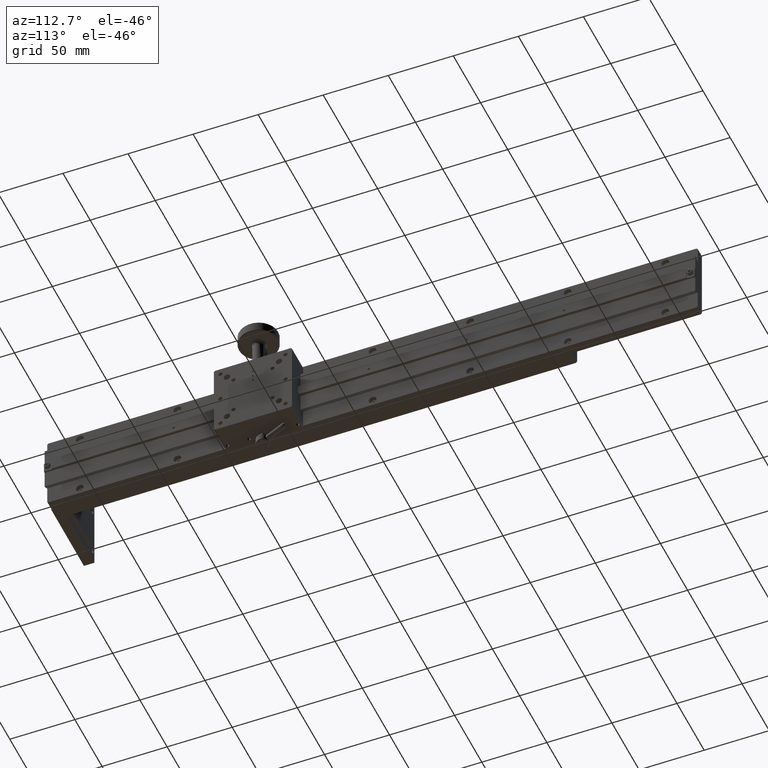
[diagram: clean part render]
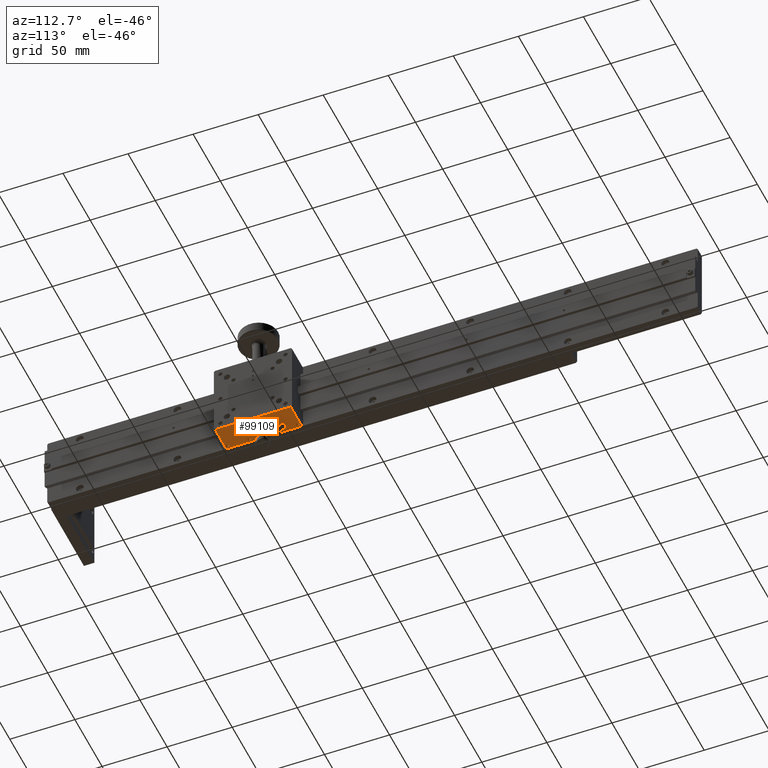
[diagram: same view with one face highlighted and labeled with its STEP entity id]
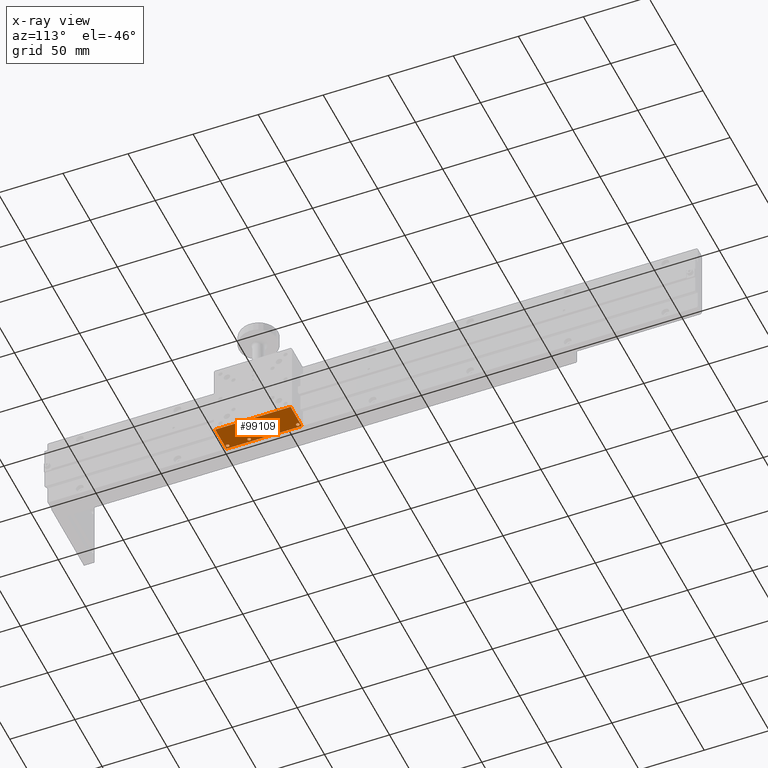
[diagram: x-ray of the same camera — body ghosted, the highlighted face saturated]
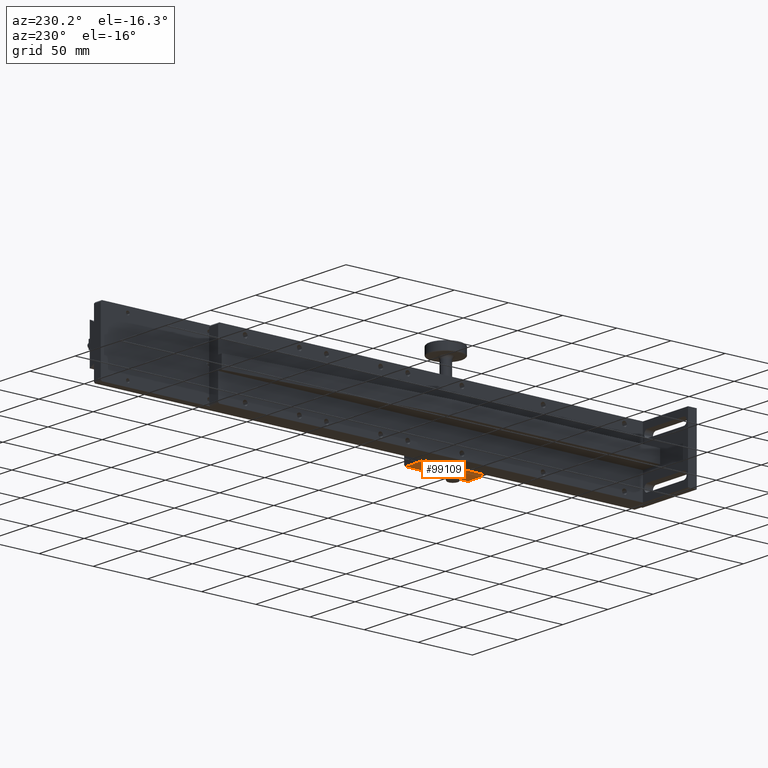
[diagram: same view with one face highlighted and labeled with its STEP entity id]
A machine part, auxiliary view. The second image highlights one B-rep face of the part: STEP entity #99109.
The next image is the same camera in x-ray: the body ghosted, the highlighted face saturated — about 0% of this face is hidden behind the body in this view.
A second angle (auxiliary view) of the same face is appended — the face is thin or edge-on in the first view.
In plain terms, the highlighted planar face has unit normal (0, -0, 1).
Its self-contained STEP definition (entity closure, byte-faithful):
#435 = DIRECTION ( 'NONE',  ( 0.000000000000000000, -1.000000000000000000, -5.551115123125901031E-15 ) ) ;
#481 = FACE_BOUND ( 'NONE', #74588, .T. ) ;
#3889 = CARTESIAN_POINT ( 'NONE',  ( 42.00000000000044054, 147.6851296135904192, -60.00000000000179057 ) ) ;
#4201 = DIRECTION ( 'NONE',  ( -2.877341228894468344E-15, 6.171113181712968488E-15, -1.000000000000000000 ) ) ;
#4205 = CARTESIAN_POINT ( 'NONE',  ( 42.00000000000049738, 183.9351296135904192, -60.00000000000155609 ) ) ;
#4390 = ORIENTED_EDGE ( 'NONE', *, *, #91466, .F. ) ;
#6583 = ORIENTED_EDGE ( 'NONE', *, *, #77711, .F. ) ;
#7111 = VECTOR ( 'NONE', #70907, 1000.000000000000000 ) ;
#7157 = FACE_BOUND ( 'NONE', #76894, .T. ) ;
#7407 = CIRCLE ( 'NONE', #14541, 1.249999999999973355 ) ;
#8243 = DIRECTION ( 'NONE',  ( 0.000000000000000000, -1.000000000000000000, -5.551115123125901031E-15 ) ) ;
#8744 = DIRECTION ( 'NONE',  ( -2.877341228894468344E-15, 6.171113181712968488E-15, -1.000000000000000000 ) ) ;
#9086 = VECTOR ( 'NONE', #80474, 1000.000000000000000 ) ;
#9338 = DIRECTION ( 'NONE',  ( -2.877341228894468344E-15, 6.171113181712968488E-15, -1.000000000000000000 ) ) ;
#10418 = EDGE_CURVE ( 'NONE', #58003, #77742, #106189, .T. ) ;
#10513 = ORIENTED_EDGE ( 'NONE', *, *, #10418, .F. ) ;
#10613 = CIRCLE ( 'NONE', #100860, 1.249999999999973355 ) ;
#11178 = DIRECTION ( 'NONE',  ( 0.000000000000000000, -1.000000000000000000, -4.205390244792298683E-15 ) ) ;
#13417 = CARTESIAN_POINT ( 'NONE',  ( 42.00000000000048317, 174.6851296135904192, -60.00000000000162004 ) ) ;
#14515 = CARTESIAN_POINT ( 'NONE',  ( 42.00000000000052580, 200.4351296135904477, -60.00000000000146372 ) ) ;
#14541 = AXIS2_PLACEMENT_3D ( 'NONE', #59686, #8744, #435 ) ;
#15233 = DIRECTION ( 'NONE',  ( -2.877341228894468344E-15, 6.171113181712968488E-15, -1.000000000000000000 ) ) ;
#18326 = ORIENTED_EDGE ( 'NONE', *, *, #106613, .F. ) ;
#19476 = CARTESIAN_POINT ( 'NONE',  ( 42.00000000000048317, 174.6851296135904192, -60.00000000000162004 ) ) ;
#19527 = DIRECTION ( 'NONE',  ( -2.877341228894468344E-15, 6.171113181712968488E-15, -1.000000000000000000 ) ) ;
#20355 = VERTEX_POINT ( 'NONE', #31195 ) ;
#20458 = LINE ( 'NONE', #55350, #7111 ) ;
#20793 = CARTESIAN_POINT ( 'NONE',  ( 42.00000000000049738, 185.1851296135903908, -60.00000000000154898 ) ) ;
#22964 = CARTESIAN_POINT ( 'NONE',  ( 42.00000000000046896, 164.1851296135904192, -60.00000000000168399 ) ) ;
#25947 = DIRECTION ( 'NONE',  ( 3.215823858353356947E-15, -6.171113181712969277E-15, 1.000000000000000000 ) ) ;
#28223 = VERTEX_POINT ( 'NONE', #89096 ) ;
#28287 = AXIS2_PLACEMENT_3D ( 'NONE', #19476, #37759, #11178 ) ;
#28439 = CARTESIAN_POINT ( 'NONE',  ( 42.00000000000046896, 162.9351296135904192, -60.00000000000169109 ) ) ;
#29129 = DIRECTION ( 'NONE',  ( 0.000000000000000000, -1.000000000000000000, -5.551115123125901031E-15 ) ) ;
#31195 = CARTESIAN_POINT ( 'NONE',  ( 60.00000000000045475, 145.6851296135903624, -60.00000000000185452 ) ) ;
#31216 = DIRECTION ( 'NONE',  ( -2.877341228894468344E-15, 6.171113181712968488E-15, -1.000000000000000000 ) ) ;
#31844 = CIRCLE ( 'NONE', #28287, 1.649999999999984812 ) ;
#32164 = CIRCLE ( 'NONE', #65769, 1.250000000000001110 ) ;
#34095 = ORIENTED_EDGE ( 'NONE', *, *, #60272, .F. ) ;
#35881 = CIRCLE ( 'NONE', #83659, 1.250000000000001110 ) ;
#36793 = CIRCLE ( 'NONE', #50944, 1.249999999999973355 ) ;
#37482 = AXIS2_PLACEMENT_3D ( 'NONE', #65878, #25947, #50892 ) ;
#37759 = DIRECTION ( 'NONE',  ( -2.877341228894468344E-15, 6.171113181712968488E-15, -1.000000000000000000 ) ) ;
#38263 = EDGE_LOOP ( 'NONE', ( #62461, #40379 ) ) ;
#39408 = ORIENTED_EDGE ( 'NONE', *, *, #81482, .F. ) ;
#39459 = LINE ( 'NONE', #88789, #9086 ) ;
#39741 = EDGE_LOOP ( 'NONE', ( #73411, #65313, #34095, #87694 ) ) ;
#39764 = VERTEX_POINT ( 'NONE', #101890 ) ;
#40379 = ORIENTED_EDGE ( 'NONE', *, *, #102182, .F. ) ;
#40693 = DIRECTION ( 'NONE',  ( -2.877341228894468344E-15, 6.171113181712968488E-15, -1.000000000000000000 ) ) ;
#40824 = LINE ( 'NONE', #91786, #49964 ) ;
#40950 = FACE_BOUND ( 'NONE', #38263, .T. ) ;
#44817 = AXIS2_PLACEMENT_3D ( 'NONE', #13417, #19527, #97640 ) ;
#44900 = CIRCLE ( 'NONE', #44817, 1.649999999999984812 ) ;
#45067 = CARTESIAN_POINT ( 'NONE',  ( 42.00000000000045475, 148.9351296135903908, -60.00000000000178346 ) ) ;
#45352 = VERTEX_POINT ( 'NONE', #45067 ) ;
#45415 = VERTEX_POINT ( 'NONE', #28439 ) ;
#46758 = DIRECTION ( 'NONE',  ( 0.000000000000000000, -1.000000000000000000, -5.551115123125901031E-15 ) ) ;
#47394 = DIRECTION ( 'NONE',  ( 0.000000000000000000, -1.000000000000000000, -5.551115123125901031E-15 ) ) ;
#47968 = VERTEX_POINT ( 'NONE', #53934 ) ;
#48590 = DIRECTION ( 'NONE',  ( 1.000000000000000000, -1.443289932012658143E-15, -3.215823858353366019E-15 ) ) ;
#48719 = FACE_BOUND ( 'NONE', #85757, .T. ) ;
#49248 = CARTESIAN_POINT ( 'NONE',  ( 42.00000000000044054, 147.6851296135904192, -60.00000000000179057 ) ) ;
#49964 = VECTOR ( 'NONE', #48590, 1000.000000000000000 ) ;
#50254 = VERTEX_POINT ( 'NONE', #89532 ) ;
#50590 = VERTEX_POINT ( 'NONE', #56800 ) ;
#50892 = DIRECTION ( 'NONE',  ( 1.000000000000000000, -1.443289932012658143E-15, -3.215823858353366019E-15 ) ) ;
#50944 = AXIS2_PLACEMENT_3D ( 'NONE', #49248, #9338, #8243 ) ;
#53034 = CARTESIAN_POINT ( 'NONE',  ( 42.00000000000046896, 164.1851296135904192, -60.00000000000168399 ) ) ;
#53061 = ORIENTED_EDGE ( 'NONE', *, *, #89460, .F. ) ;
#53361 = AXIS2_PLACEMENT_3D ( 'NONE', #3889, #96961, #90299 ) ;
#53484 = CARTESIAN_POINT ( 'NONE',  ( 39.50000000000053291, 203.6851296135904192, -60.00000000000142819 ) ) ;
#53934 = CARTESIAN_POINT ( 'NONE',  ( 42.00000000000044054, 146.4351296135904477, -60.00000000000179767 ) ) ;
#54118 = DIRECTION ( 'NONE',  ( 0.000000000000000000, -1.000000000000000000, -5.551115123125777969E-15 ) ) ;
#55119 = VERTEX_POINT ( 'NONE', #14515 ) ;
#55350 = CARTESIAN_POINT ( 'NONE',  ( 60.00000000000054001, 204.6851296135903908, -60.00000000000149214 ) ) ;
#55798 = CARTESIAN_POINT ( 'NONE',  ( 39.50000000000045475, 145.6851296135903908, -60.00000000000179057 ) ) ;
#56800 = CARTESIAN_POINT ( 'NONE',  ( 42.00000000000054001, 202.9351296135903908, -60.00000000000144951 ) ) ;
#57391 = VERTEX_POINT ( 'NONE', #53484 ) ;
#58003 = VERTEX_POINT ( 'NONE', #108262 ) ;
#58089 = FACE_BOUND ( 'NONE', #94274, .T. ) ;
#59686 = CARTESIAN_POINT ( 'NONE',  ( 42.00000000000052580, 201.6851296135904192, -60.00000000000145661 ) ) ;
#60272 = EDGE_CURVE ( 'NONE', #57391, #100053, #74484, .T. ) ;
#61814 = AXIS2_PLACEMENT_3D ( 'NONE', #106596, #31216, #46758 ) ;
#62461 = ORIENTED_EDGE ( 'NONE', *, *, #88072, .F. ) ;
#63324 = VERTEX_POINT ( 'NONE', #70792 ) ;
#63473 = CARTESIAN_POINT ( 'NONE',  ( 42.00000000000052580, 201.6851296135904192, -60.00000000000145661 ) ) ;
#65313 = ORIENTED_EDGE ( 'NONE', *, *, #96824, .T. ) ;
#65769 = AXIS2_PLACEMENT_3D ( 'NONE', #53034, #95700, #54118 ) ;
#65878 = CARTESIAN_POINT ( 'NONE',  ( 39.50000000000053291, 204.6851296135904192, -60.00000000000142819 ) ) ;
#66147 = DIRECTION ( 'NONE',  ( -1.443289932012703503E-15, -1.000000000000000000, -6.171113181712962177E-15 ) ) ;
#70035 = EDGE_CURVE ( 'NONE', #45352, #47968, #36793, .T. ) ;
#70792 = CARTESIAN_POINT ( 'NONE',  ( 42.00000000000048317, 165.4351296135904192, -60.00000000000167688 ) ) ;
#70907 = DIRECTION ( 'NONE',  ( -1.443289932012703503E-15, -1.000000000000000000, -6.171113181712962177E-15 ) ) ;
#71099 = CIRCLE ( 'NONE', #53361, 1.249999999999973355 ) ;
#73411 = ORIENTED_EDGE ( 'NONE', *, *, #94846, .T. ) ;
#74484 = LINE ( 'NONE', #108284, #99711 ) ;
#74588 = EDGE_LOOP ( 'NONE', ( #18326, #39408 ) ) ;
#76894 = EDGE_LOOP ( 'NONE', ( #102924, #80313 ) ) ;
#77711 = EDGE_CURVE ( 'NONE', #55119, #50590, #10613, .T. ) ;
#77742 = VERTEX_POINT ( 'NONE', #4205 ) ;
#80313 = ORIENTED_EDGE ( 'NONE', *, *, #70035, .F. ) ;
#80474 = DIRECTION ( 'NONE',  ( -1.000000000000000000, 1.443289932012658143E-15, 3.215823858353366019E-15 ) ) ;
#81482 = EDGE_CURVE ( 'NONE', #50254, #28223, #31844, .T. ) ;
#83659 = AXIS2_PLACEMENT_3D ( 'NONE', #22964, #40693, #92206 ) ;
#85757 = EDGE_LOOP ( 'NONE', ( #6583, #53061 ) ) ;
#87694 = ORIENTED_EDGE ( 'NONE', *, *, #100549, .T. ) ;
#88072 = EDGE_CURVE ( 'NONE', #45415, #63324, #32164, .T. ) ;
#88789 = CARTESIAN_POINT ( 'NONE',  ( 39.50000000000045475, 145.6851296135903908, -60.00000000000179057 ) ) ;
#89096 = CARTESIAN_POINT ( 'NONE',  ( 42.00000000000048317, 173.0351296135904420, -60.00000000000162714 ) ) ;
#89460 = EDGE_CURVE ( 'NONE', #50590, #55119, #7407, .T. ) ;
#89532 = CARTESIAN_POINT ( 'NONE',  ( 42.00000000000049738, 176.3351296135903965, -60.00000000000161293 ) ) ;
#90299 = DIRECTION ( 'NONE',  ( 0.000000000000000000, -1.000000000000000000, -5.551115123125901031E-15 ) ) ;
#91466 = EDGE_CURVE ( 'NONE', #77742, #58003, #102566, .T. ) ;
#91786 = CARTESIAN_POINT ( 'NONE',  ( 60.00000000000054001, 203.6851296135903908, -60.00000000000149925 ) ) ;
#91914 = PLANE ( 'NONE',  #37482 ) ;
#92206 = DIRECTION ( 'NONE',  ( 0.000000000000000000, -1.000000000000000000, -5.551115123125777969E-15 ) ) ;
#94274 = EDGE_LOOP ( 'NONE', ( #4390, #10513 ) ) ;
#94846 = EDGE_CURVE ( 'NONE', #39764, #20355, #20458, .T. ) ;
#95700 = DIRECTION ( 'NONE',  ( -2.877341228894468344E-15, 6.171113181712968488E-15, -1.000000000000000000 ) ) ;
#96824 = EDGE_CURVE ( 'NONE', #20355, #100053, #39459, .T. ) ;
#96961 = DIRECTION ( 'NONE',  ( -2.877341228894468344E-15, 6.171113181712968488E-15, -1.000000000000000000 ) ) ;
#97640 = DIRECTION ( 'NONE',  ( 0.000000000000000000, -1.000000000000000000, -4.205390244792298683E-15 ) ) ;
#98428 = EDGE_CURVE ( 'NONE', #47968, #45352, #71099, .T. ) ;
#99109 = ADVANCED_FACE ( 'NONE', ( #481, #109642, #48719, #7157, #58089, #40950 ), #91914, .F. ) ;
#99711 = VECTOR ( 'NONE', #66147, 1000.000000000000000 ) ;
#100053 = VERTEX_POINT ( 'NONE', #55798 ) ;
#100549 = EDGE_CURVE ( 'NONE', #57391, #39764, #40824, .T. ) ;
#100860 = AXIS2_PLACEMENT_3D ( 'NONE', #63473, #15233, #47394 ) ;
#101890 = CARTESIAN_POINT ( 'NONE',  ( 60.00000000000054001, 203.6851296135903908, -60.00000000000149925 ) ) ;
#102182 = EDGE_CURVE ( 'NONE', #63324, #45415, #35881, .T. ) ;
#102566 = CIRCLE ( 'NONE', #61814, 1.249999999999973355 ) ;
#102924 = ORIENTED_EDGE ( 'NONE', *, *, #98428, .F. ) ;
#106189 = CIRCLE ( 'NONE', #109682, 1.249999999999973355 ) ;
#106596 = CARTESIAN_POINT ( 'NONE',  ( 42.00000000000049738, 185.1851296135903908, -60.00000000000154898 ) ) ;
#106613 = EDGE_CURVE ( 'NONE', #28223, #50254, #44900, .T. ) ;
#108262 = CARTESIAN_POINT ( 'NONE',  ( 42.00000000000051159, 186.4351296135903908, -60.00000000000154188 ) ) ;
#108284 = CARTESIAN_POINT ( 'NONE',  ( 39.50000000000053291, 204.6851296135904192, -60.00000000000142819 ) ) ;
#109642 = FACE_OUTER_BOUND ( 'NONE', #39741, .T. ) ;
#109682 = AXIS2_PLACEMENT_3D ( 'NONE', #20793, #4201, #29129 ) ;